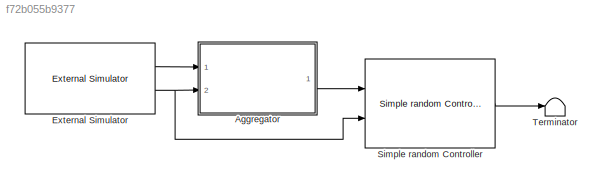
MODEL slx_f72b055b9377
KIND model
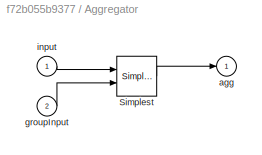
BLOCK [SubSystem] Aggregator
  AttributesFormatString = %<BlockChoice>
  BlockChoice = Simplest
  MemberBlocks = Average,Simple,Simple db Aggregator,Simplest
  Ports = [2, 1]
  RequestExecContextInheritance = off
  TemplateBlock = libAggregators/Aggregator
BLOCK [Reference] Aggregator/Simplest  REF=libAggregators/Simplest
  FunctionWithSeparateData = off
  GeneratePreprocessorConditionals = off
  Ports = [2, 1]
  ShowPortLabels = FromPortIcon
  SourceBlock = libAggregators/Simplest
  SystemSampleTime = -1
BLOCK [Outport] Aggregator/agg
  IconDisplay = Port number
BLOCK [Inport] Aggregator/groupInput
  IconDisplay = Port number
  Port = 2
BLOCK [Inport] Aggregator/input
  IconDisplay = Port number
BLOCK [Reference] External Simulator  REF=libSimulators/External Simulator
  Condition = %20151209%
  N = 10
  Ports = [0, 2]
  SourceBlock = libSimulators/External Simulator
  SourceType = slexVarSizeMATLABSystemGetDBIDsSysObj
  db_name = HeatingUnits
  db_password = unb.sql.2015
  db_username = sw_ETS
BLOCK [Reference] Simple random Controller  REF=libControllers/Simple random Controller
  Ports = [2, 1]
  SourceBlock = libControllers/Simple random Controller
  SourceType = db_Controller_mtlbSysBlock
  db_name = HeatingUnits
  db_password = unb.sql.2015
  db_username = sw_ETS
BLOCK [Terminator] Terminator
LINE Aggregator:1 -> Simple random Controller:1
LINE External Simulator:1 -> Aggregator:1
NET External Simulator:2 -> Aggregator:2, Simple random Controller:2
LINE Simple random Controller:1 -> Terminator:1
note: NET lines group one-source signal fan-out (src -> all destinations, sorted); 1:1 wires keep LINE
